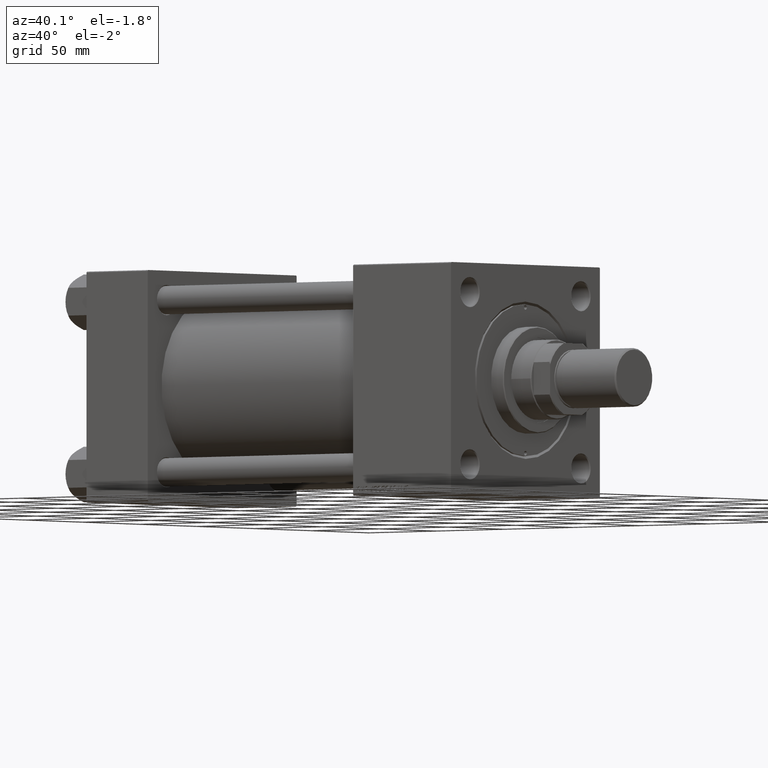
[diagram: clean part render]
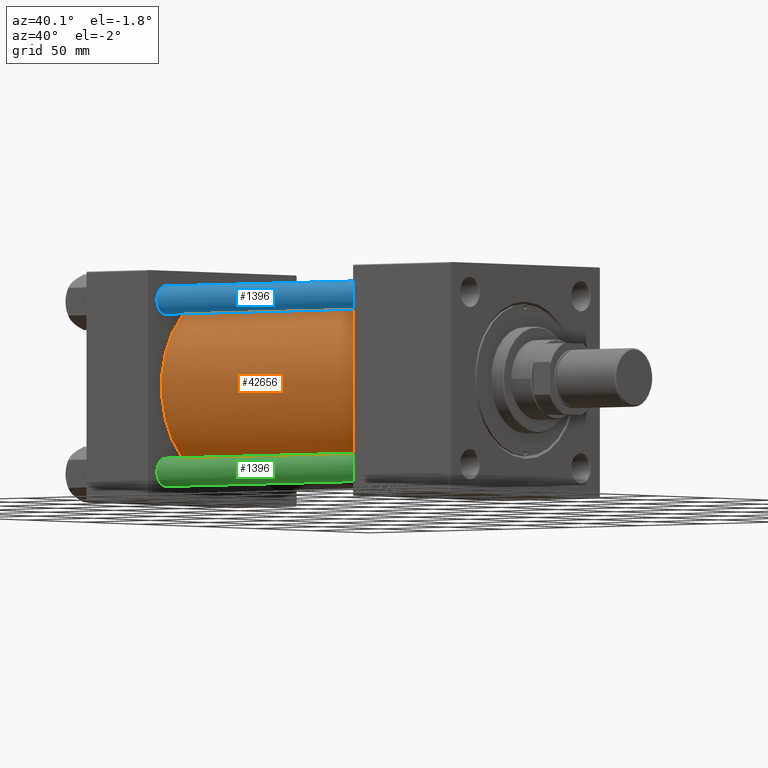
[diagram: same view with three faces highlighted in distinct colors, each labeled with its STEP entity id]
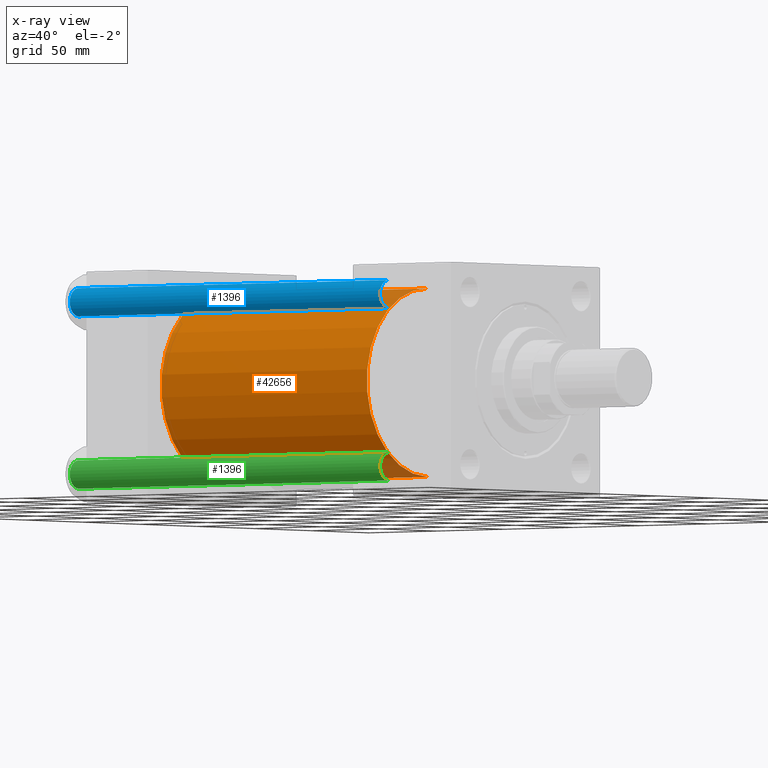
[diagram: x-ray of the same camera — body ghosted, the three highlighted faces saturated]
A machine part, auxiliary view with three faces highlighted in distinct colors.
The next image is the same camera in x-ray (body ghosted, the three faces saturated) — at least one of them is partly hidden behind the body in this view.
Their STEP definitions:

[orange] entity #42656 — the highlighted cylindrical surface (partial cylindrical patch) has radius 53 mm, axis along (-1, -0, -0).
#1407 = CYLINDRICAL_SURFACE ( 'NONE', #49811, 53.00000000000000711 ) ;
#1434 = CARTESIAN_POINT ( 'NONE',  ( 196.0000000000000000, 3.888542821515762466E-15, -53.00000000000000711 ) ) ;
#1683 = DIRECTION ( 'NONE',  ( -1.000000000000000000, -0.000000000000000000, -0.000000000000000000 ) ) ;
#3338 = DIRECTION ( 'NONE',  ( 0.000000000000000000, 0.000000000000000000, -1.000000000000000000 ) ) ;
#4325 = VERTEX_POINT ( 'NONE', #25545 ) ;
#4430 = AXIS2_PLACEMENT_3D ( 'NONE', #46651, #15253, #22786 ) ;
#6790 = ORIENTED_EDGE ( 'NONE', *, *, #17994, .T. ) ;
#10083 = ORIENTED_EDGE ( 'NONE', *, *, #50307, .F. ) ;
#12035 = AXIS2_PLACEMENT_3D ( 'NONE', #26923, #23030, #3338 ) ;
#15253 = DIRECTION ( 'NONE',  ( 1.000000000000000000, -0.000000000000000000, 0.000000000000000000 ) ) ;
#17790 = CIRCLE ( 'NONE', #12035, 53.00000000000000711 ) ;
#17994 = EDGE_CURVE ( 'NONE', #4325, #46851, #42519, .T. ) ;
#20036 = LINE ( 'NONE', #39759, #45790 ) ;
#21117 = LINE ( 'NONE', #1434, #32751 ) ;
#22023 = CARTESIAN_POINT ( 'NONE',  ( 196.0000000000000000, -2.602085213965210642E-15, 53.00000000000000711 ) ) ;
#22786 = DIRECTION ( 'NONE',  ( 0.000000000000000000, 0.000000000000000000, 1.000000000000000000 ) ) ;
#23030 = DIRECTION ( 'NONE',  ( 1.000000000000000000, 0.000000000000000000, 0.000000000000000000 ) ) ;
#25545 = CARTESIAN_POINT ( 'NONE',  ( 44.99999999999998579, -2.602085213965210642E-15, 53.00000000000000711 ) ) ;
#26091 = CARTESIAN_POINT ( 'NONE',  ( 196.0000000000000000, 3.888542821515762466E-15, -53.00000000000000711 ) ) ;
#26454 = EDGE_LOOP ( 'NONE', ( #10083, #46944, #28126, #6790 ) ) ;
#26923 = CARTESIAN_POINT ( 'NONE',  ( 196.0000000000000000, -2.602085213965210642E-15, 0.000000000000000000 ) ) ;
#27828 = DIRECTION ( 'NONE',  ( -1.000000000000000000, -0.000000000000000000, -0.000000000000000000 ) ) ;
#28126 = ORIENTED_EDGE ( 'NONE', *, *, #43820, .T. ) ;
#28876 = CARTESIAN_POINT ( 'NONE',  ( 196.0000000000000000, -2.602085213965210642E-15, 0.000000000000000000 ) ) ;
#29136 = DIRECTION ( 'NONE',  ( 0.000000000000000000, 0.000000000000000000, 1.000000000000000000 ) ) ;
#29653 = FACE_OUTER_BOUND ( 'NONE', #26454, .T. ) ;
#31240 = VERTEX_POINT ( 'NONE', #22023 ) ;
#32751 = VECTOR ( 'NONE', #1683, 1000.000000000000000 ) ;
#37260 = CARTESIAN_POINT ( 'NONE',  ( 44.99999999999998579, 3.888542821515762466E-15, -53.00000000000000711 ) ) ;
#39759 = CARTESIAN_POINT ( 'NONE',  ( 196.0000000000000000, -2.602085213965210642E-15, 53.00000000000000711 ) ) ;
#41072 = DIRECTION ( 'NONE',  ( -1.000000000000000000, -0.000000000000000000, -0.000000000000000000 ) ) ;
#42519 = CIRCLE ( 'NONE', #4430, 53.00000000000000711 ) ;
#42656 = ADVANCED_FACE ( 'NONE', ( #29653 ), #1407, .T. ) ;
#43820 = EDGE_CURVE ( 'NONE', #31240, #4325, #20036, .T. ) ;
#45790 = VECTOR ( 'NONE', #27828, 1000.000000000000000 ) ;
#46651 = CARTESIAN_POINT ( 'NONE',  ( 44.99999999999998579, -2.602085213965210642E-15, 0.000000000000000000 ) ) ;
#46851 = VERTEX_POINT ( 'NONE', #37260 ) ;
#46944 = ORIENTED_EDGE ( 'NONE', *, *, #49819, .F. ) ;
#49811 = AXIS2_PLACEMENT_3D ( 'NONE', #28876, #41072, #29136 ) ;
#49819 = EDGE_CURVE ( 'NONE', #31240, #49899, #17790, .T. ) ;
#49899 = VERTEX_POINT ( 'NONE', #26091 ) ;
#50307 = EDGE_CURVE ( 'NONE', #49899, #46851, #21117, .T. ) ;

[blue] entity #1396 — the highlighted cylindrical surface (edge-blend (fillet) strip) has radius 8 mm, axis along (1, 0, -0).
#1132 = AXIS2_PLACEMENT_3D ( 'NONE', #9787, #37265, #12902 ) ;
#1396 = ADVANCED_FACE ( 'NONE', ( #38281 ), #2778, .T. ) ;
#2778 = CYLINDRICAL_SURFACE ( 'NONE', #44053, 8.000000000000000000 ) ;
#5603 = EDGE_CURVE ( 'NONE', #20577, #24413, #18672, .T. ) ;
#7947 = ORIENTED_EDGE ( 'NONE', *, *, #5603, .F. ) ;
#8044 = EDGE_CURVE ( 'NONE', #20577, #50262, #48914, .T. ) ;
#9787 = CARTESIAN_POINT ( 'NONE',  ( 0.000000000000000000, 0.000000000000000000, 0.5000000000001392220 ) ) ;
#10042 = CARTESIAN_POINT ( 'NONE',  ( 0.000000000000000000, 0.000000000000000000, 228.5000000000000853 ) ) ;
#10665 = CARTESIAN_POINT ( 'NONE',  ( -8.000000000000000000, 0.000000000000000000, 229.0000000000000000 ) ) ;
#12902 = DIRECTION ( 'NONE',  ( 1.000000000000000000, 0.000000000000000000, 0.000000000000000000 ) ) ;
#15551 = DIRECTION ( 'NONE',  ( -0.000000000000000000, -0.000000000000000000, -1.000000000000000000 ) ) ;
#17666 = EDGE_LOOP ( 'NONE', ( #44511, #27478, #49738, #7947 ) ) ;
#18284 = EDGE_CURVE ( 'NONE', #43922, #24413, #23476, .T. ) ;
#18562 = CARTESIAN_POINT ( 'NONE',  ( 0.000000000000000000, 0.000000000000000000, 229.0000000000000000 ) ) ;
#18672 = LINE ( 'NONE', #10665, #32558 ) ;
#18873 = CARTESIAN_POINT ( 'NONE',  ( -8.000000000000000000, 0.000000000000000000, 228.5000000000000853 ) ) ;
#19781 = CARTESIAN_POINT ( 'NONE',  ( -8.000000000000000000, 0.000000000000000000, 0.5000000000001392220 ) ) ;
#20577 = VERTEX_POINT ( 'NONE', #18873 ) ;
#20921 = DIRECTION ( 'NONE',  ( 0.000000000000000000, 0.000000000000000000, -1.000000000000000000 ) ) ;
#23476 = CIRCLE ( 'NONE', #1132, 8.000000000000000000 ) ;
#24413 = VERTEX_POINT ( 'NONE', #19781 ) ;
#26049 = EDGE_CURVE ( 'NONE', #50262, #43922, #46732, .T. ) ;
#27478 = ORIENTED_EDGE ( 'NONE', *, *, #26049, .T. ) ;
#29407 = VECTOR ( 'NONE', #49836, 1000.000000000000000 ) ;
#32558 = VECTOR ( 'NONE', #15551, 1000.000000000000000 ) ;
#32858 = DIRECTION ( 'NONE',  ( 1.000000000000000000, 0.000000000000000000, 0.000000000000000000 ) ) ;
#34012 = CARTESIAN_POINT ( 'NONE',  ( 8.000000000000000000, 9.797174393178823685E-16, 229.0000000000000000 ) ) ;
#34390 = DIRECTION ( 'NONE',  ( -0.000000000000000000, -0.000000000000000000, -1.000000000000000000 ) ) ;
#37265 = DIRECTION ( 'NONE',  ( -0.000000000000000000, -0.000000000000000000, 1.000000000000000000 ) ) ;
#37970 = CARTESIAN_POINT ( 'NONE',  ( 8.000000000000000000, 9.797174393178823685E-16, 228.5000000000000853 ) ) ;
#38281 = FACE_OUTER_BOUND ( 'NONE', #17666, .T. ) ;
#39814 = DIRECTION ( 'NONE',  ( -1.000000000000000000, 0.000000000000000000, 0.000000000000000000 ) ) ;
#40770 = CARTESIAN_POINT ( 'NONE',  ( 8.000000000000000000, 9.797174393178823685E-16, 0.5000000000001392220 ) ) ;
#43922 = VERTEX_POINT ( 'NONE', #40770 ) ;
#44053 = AXIS2_PLACEMENT_3D ( 'NONE', #18562, #34390, #39814 ) ;
#44511 = ORIENTED_EDGE ( 'NONE', *, *, #8044, .T. ) ;
#44768 = AXIS2_PLACEMENT_3D ( 'NONE', #10042, #20921, #32858 ) ;
#46732 = LINE ( 'NONE', #34012, #29407 ) ;
#48914 = CIRCLE ( 'NONE', #44768, 8.000000000000000000 ) ;
#49738 = ORIENTED_EDGE ( 'NONE', *, *, #18284, .T. ) ;
#49836 = DIRECTION ( 'NONE',  ( -0.000000000000000000, -0.000000000000000000, -1.000000000000000000 ) ) ;
#50262 = VERTEX_POINT ( 'NONE', #37970 ) ;

[green] entity #1396 — the highlighted cylindrical surface (edge-blend (fillet) strip) has radius 8 mm, axis along (-1, -0, -0).
#1132 = AXIS2_PLACEMENT_3D ( 'NONE', #9787, #37265, #12902 ) ;
#1396 = ADVANCED_FACE ( 'NONE', ( #38281 ), #2778, .T. ) ;
#2778 = CYLINDRICAL_SURFACE ( 'NONE', #44053, 8.000000000000000000 ) ;
#5603 = EDGE_CURVE ( 'NONE', #20577, #24413, #18672, .T. ) ;
#7947 = ORIENTED_EDGE ( 'NONE', *, *, #5603, .F. ) ;
#8044 = EDGE_CURVE ( 'NONE', #20577, #50262, #48914, .T. ) ;
#9787 = CARTESIAN_POINT ( 'NONE',  ( 0.000000000000000000, 0.000000000000000000, 0.5000000000001392220 ) ) ;
#10042 = CARTESIAN_POINT ( 'NONE',  ( 0.000000000000000000, 0.000000000000000000, 228.5000000000000853 ) ) ;
#10665 = CARTESIAN_POINT ( 'NONE',  ( -8.000000000000000000, 0.000000000000000000, 229.0000000000000000 ) ) ;
#12902 = DIRECTION ( 'NONE',  ( 1.000000000000000000, 0.000000000000000000, 0.000000000000000000 ) ) ;
#15551 = DIRECTION ( 'NONE',  ( -0.000000000000000000, -0.000000000000000000, -1.000000000000000000 ) ) ;
#17666 = EDGE_LOOP ( 'NONE', ( #44511, #27478, #49738, #7947 ) ) ;
#18284 = EDGE_CURVE ( 'NONE', #43922, #24413, #23476, .T. ) ;
#18562 = CARTESIAN_POINT ( 'NONE',  ( 0.000000000000000000, 0.000000000000000000, 229.0000000000000000 ) ) ;
#18672 = LINE ( 'NONE', #10665, #32558 ) ;
#18873 = CARTESIAN_POINT ( 'NONE',  ( -8.000000000000000000, 0.000000000000000000, 228.5000000000000853 ) ) ;
#19781 = CARTESIAN_POINT ( 'NONE',  ( -8.000000000000000000, 0.000000000000000000, 0.5000000000001392220 ) ) ;
#20577 = VERTEX_POINT ( 'NONE', #18873 ) ;
#20921 = DIRECTION ( 'NONE',  ( 0.000000000000000000, 0.000000000000000000, -1.000000000000000000 ) ) ;
#23476 = CIRCLE ( 'NONE', #1132, 8.000000000000000000 ) ;
#24413 = VERTEX_POINT ( 'NONE', #19781 ) ;
#26049 = EDGE_CURVE ( 'NONE', #50262, #43922, #46732, .T. ) ;
#27478 = ORIENTED_EDGE ( 'NONE', *, *, #26049, .T. ) ;
#29407 = VECTOR ( 'NONE', #49836, 1000.000000000000000 ) ;
#32558 = VECTOR ( 'NONE', #15551, 1000.000000000000000 ) ;
#32858 = DIRECTION ( 'NONE',  ( 1.000000000000000000, 0.000000000000000000, 0.000000000000000000 ) ) ;
#34012 = CARTESIAN_POINT ( 'NONE',  ( 8.000000000000000000, 9.797174393178823685E-16, 229.0000000000000000 ) ) ;
#34390 = DIRECTION ( 'NONE',  ( -0.000000000000000000, -0.000000000000000000, -1.000000000000000000 ) ) ;
#37265 = DIRECTION ( 'NONE',  ( -0.000000000000000000, -0.000000000000000000, 1.000000000000000000 ) ) ;
#37970 = CARTESIAN_POINT ( 'NONE',  ( 8.000000000000000000, 9.797174393178823685E-16, 228.5000000000000853 ) ) ;
#38281 = FACE_OUTER_BOUND ( 'NONE', #17666, .T. ) ;
#39814 = DIRECTION ( 'NONE',  ( -1.000000000000000000, 0.000000000000000000, 0.000000000000000000 ) ) ;
#40770 = CARTESIAN_POINT ( 'NONE',  ( 8.000000000000000000, 9.797174393178823685E-16, 0.5000000000001392220 ) ) ;
#43922 = VERTEX_POINT ( 'NONE', #40770 ) ;
#44053 = AXIS2_PLACEMENT_3D ( 'NONE', #18562, #34390, #39814 ) ;
#44511 = ORIENTED_EDGE ( 'NONE', *, *, #8044, .T. ) ;
#44768 = AXIS2_PLACEMENT_3D ( 'NONE', #10042, #20921, #32858 ) ;
#46732 = LINE ( 'NONE', #34012, #29407 ) ;
#48914 = CIRCLE ( 'NONE', #44768, 8.000000000000000000 ) ;
#49738 = ORIENTED_EDGE ( 'NONE', *, *, #18284, .T. ) ;
#49836 = DIRECTION ( 'NONE',  ( -0.000000000000000000, -0.000000000000000000, -1.000000000000000000 ) ) ;
#50262 = VERTEX_POINT ( 'NONE', #37970 ) ;